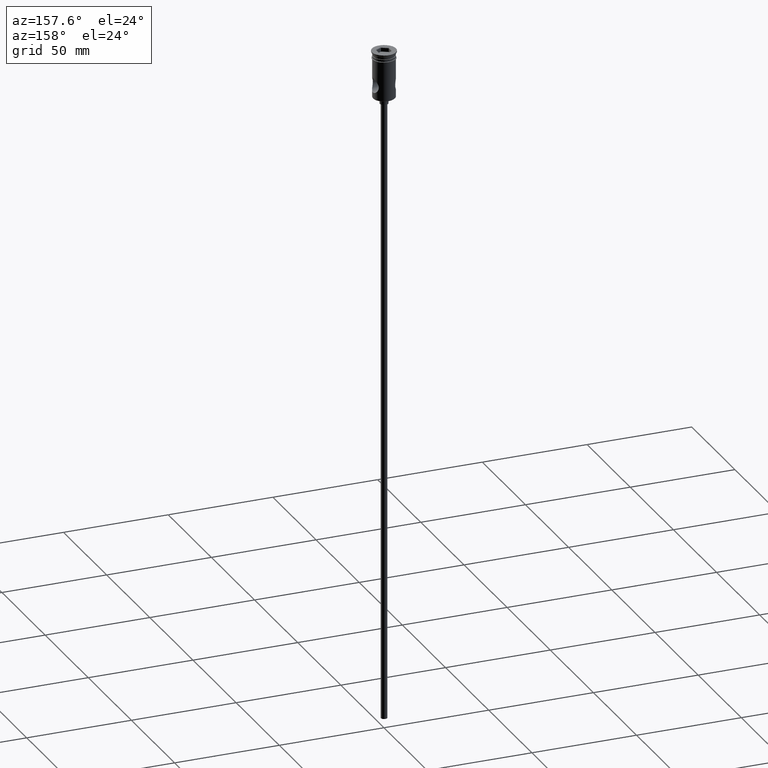
[diagram: clean part render]
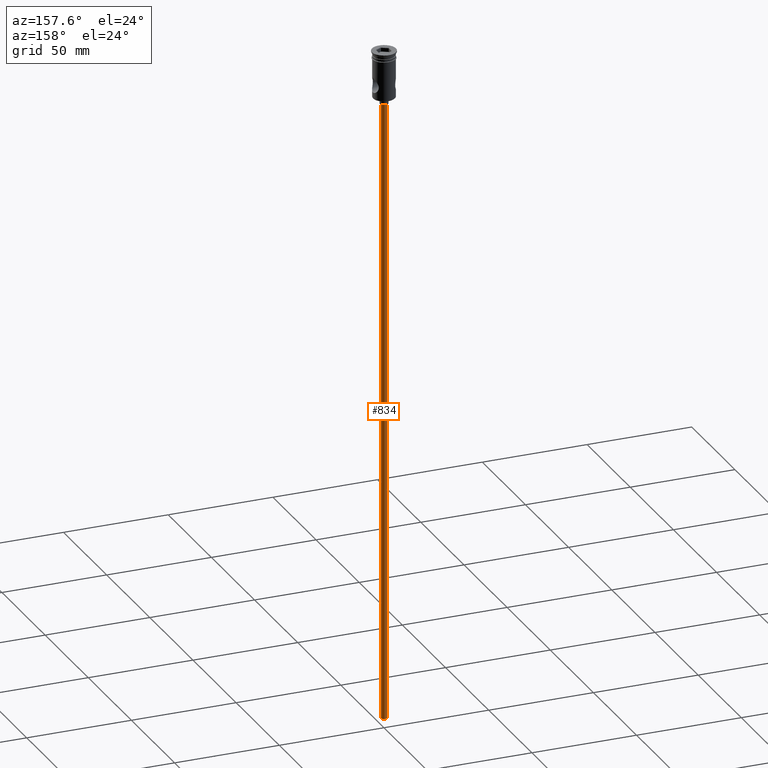
[diagram: same view with one face highlighted and labeled with its STEP entity id]
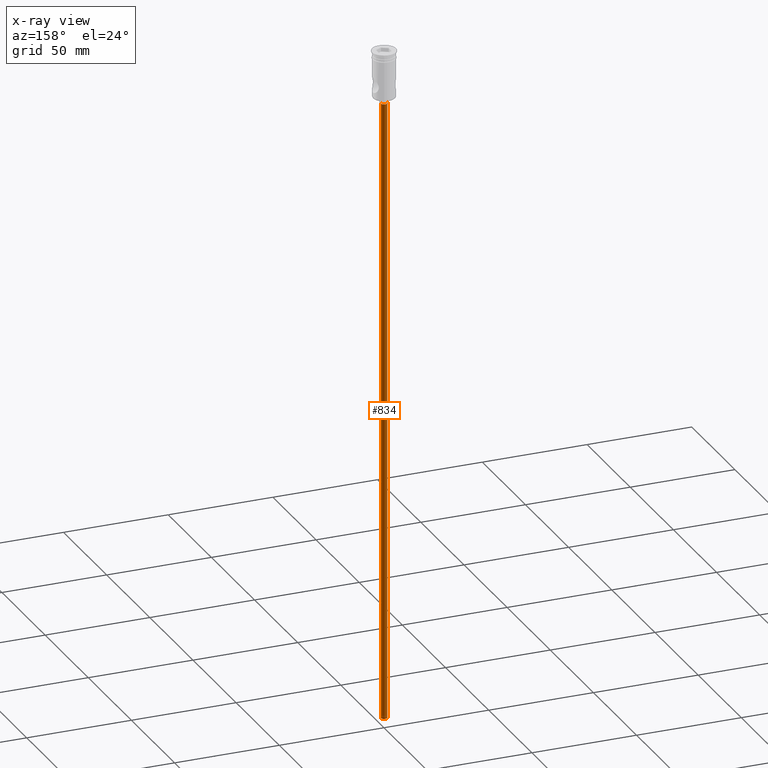
[diagram: x-ray of the same camera — body ghosted, the highlighted face saturated]
A machine part, auxiliary view. The second image highlights one B-rep face of the part: STEP entity #834.
The next image is the same camera in x-ray: the body ghosted, the highlighted face saturated — about 0% of this face is hidden behind the body in this view.
In plain terms, the highlighted cylindrical surface (edge-blend (fillet) strip) has radius 1.5 mm, axis along (-0, -0, 1).
Its self-contained STEP definition (entity closure, byte-faithful):
#54 = LINE ( 'NONE', #825, #1361 ) ;
#85 = AXIS2_PLACEMENT_3D ( 'NONE', #298, #229, #1300 ) ;
#183 = DIRECTION ( 'NONE',  ( -0.000000000000000000, -0.000000000000000000, 1.000000000000000000 ) ) ;
#218 = VERTEX_POINT ( 'NONE', #1168 ) ;
#229 = DIRECTION ( 'NONE',  ( 0.000000000000000000, 0.000000000000000000, -1.000000000000000000 ) ) ;
#298 = CARTESIAN_POINT ( 'NONE',  ( 0.000000000000000000, 0.000000000000000000, -25.50000000000000000 ) ) ;
#306 = CARTESIAN_POINT ( 'NONE',  ( -1.500000000000000222, 1.836970198721030181E-16, -322.5000000000000000 ) ) ;
#337 = LINE ( 'NONE', #650, #423 ) ;
#415 = EDGE_CURVE ( 'NONE', #1378, #218, #1230, .T. ) ;
#423 = VECTOR ( 'NONE', #532, 1000.000000000000000 ) ;
#475 = CARTESIAN_POINT ( 'NONE',  ( -1.500000000000000222, 1.836970198721030181E-16, -25.50000000000000000 ) ) ;
#532 = DIRECTION ( 'NONE',  ( -0.000000000000000000, -0.000000000000000000, 1.000000000000000000 ) ) ;
#578 = CIRCLE ( 'NONE', #85, 1.500000000000000222 ) ;
#622 = EDGE_CURVE ( 'NONE', #1228, #1018, #578, .T. ) ;
#650 = CARTESIAN_POINT ( 'NONE',  ( 1.500000000000000222, 0.000000000000000000, -322.5000000000000000 ) ) ;
#733 = CARTESIAN_POINT ( 'NONE',  ( 0.000000000000000000, 0.000000000000000000, -322.5000000000000000 ) ) ;
#788 = DIRECTION ( 'NONE',  ( 0.000000000000000000, 0.000000000000000000, -1.000000000000000000 ) ) ;
#799 = EDGE_LOOP ( 'NONE', ( #1248, #808, #1282, #1084 ) ) ;
#808 = ORIENTED_EDGE ( 'NONE', *, *, #1216, .T. ) ;
#825 = CARTESIAN_POINT ( 'NONE',  ( -1.500000000000000222, 1.836970198721030181E-16, -322.5000000000000000 ) ) ;
#834 = ADVANCED_FACE ( 'NONE', ( #838 ), #1411, .T. ) ;
#838 = FACE_OUTER_BOUND ( 'NONE', #799, .T. ) ;
#861 = DIRECTION ( 'NONE',  ( 1.000000000000000000, 0.000000000000000000, 0.000000000000000000 ) ) ;
#876 = EDGE_CURVE ( 'NONE', #218, #1018, #337, .T. ) ;
#903 = DIRECTION ( 'NONE',  ( -1.000000000000000000, 0.000000000000000000, 0.000000000000000000 ) ) ;
#1003 = AXIS2_PLACEMENT_3D ( 'NONE', #1121, #788, #903 ) ;
#1018 = VERTEX_POINT ( 'NONE', #1240 ) ;
#1084 = ORIENTED_EDGE ( 'NONE', *, *, #876, .F. ) ;
#1121 = CARTESIAN_POINT ( 'NONE',  ( 0.000000000000000000, 0.000000000000000000, -322.5000000000000000 ) ) ;
#1147 = DIRECTION ( 'NONE',  ( -0.000000000000000000, -0.000000000000000000, 1.000000000000000000 ) ) ;
#1168 = CARTESIAN_POINT ( 'NONE',  ( 1.500000000000000222, 0.000000000000000000, -322.5000000000000000 ) ) ;
#1189 = AXIS2_PLACEMENT_3D ( 'NONE', #733, #183, #861 ) ;
#1216 = EDGE_CURVE ( 'NONE', #1378, #1228, #54, .T. ) ;
#1228 = VERTEX_POINT ( 'NONE', #475 ) ;
#1230 = CIRCLE ( 'NONE', #1003, 1.500000000000000222 ) ;
#1240 = CARTESIAN_POINT ( 'NONE',  ( 1.500000000000000222, 0.000000000000000000, -25.50000000000000000 ) ) ;
#1248 = ORIENTED_EDGE ( 'NONE', *, *, #415, .F. ) ;
#1282 = ORIENTED_EDGE ( 'NONE', *, *, #622, .T. ) ;
#1300 = DIRECTION ( 'NONE',  ( -1.000000000000000000, 0.000000000000000000, 0.000000000000000000 ) ) ;
#1361 = VECTOR ( 'NONE', #1147, 1000.000000000000000 ) ;
#1378 = VERTEX_POINT ( 'NONE', #306 ) ;
#1411 = CYLINDRICAL_SURFACE ( 'NONE', #1189, 1.500000000000000222 ) ;